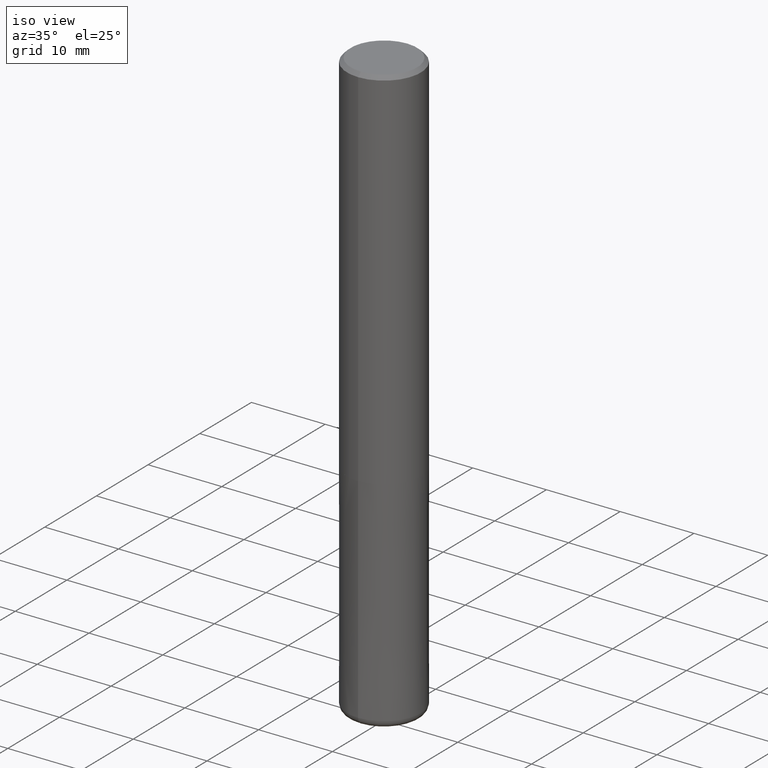
[diagram: clean part render]
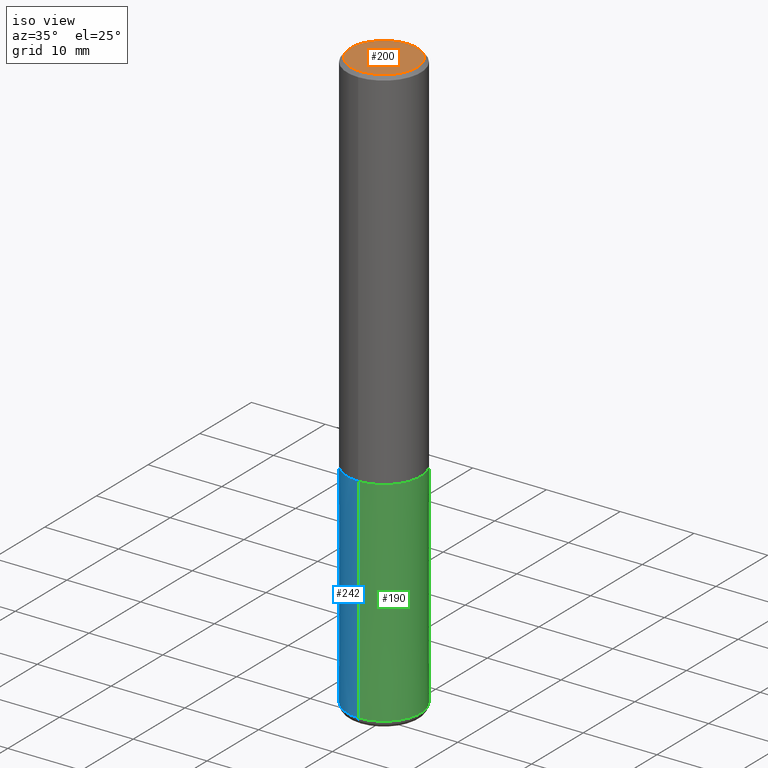
[diagram: same view with three faces highlighted in distinct colors, each labeled with its STEP entity id]
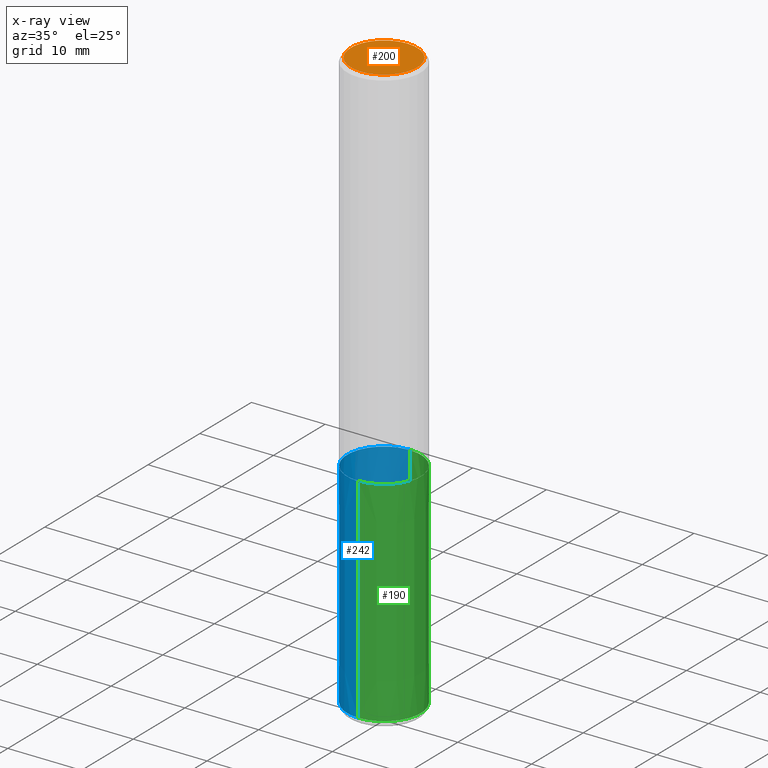
[diagram: x-ray of the same camera — body ghosted, the three highlighted faces saturated]
A machine part, iso view with three faces highlighted in distinct colors.
The next image is the same camera in x-ray (body ghosted, the three faces saturated) — at least one of them is partly hidden behind the body in this view.
Their STEP definitions:

[orange] entity #200 — the highlighted planar face has unit normal (-0, 0, 1).
#152=VERTEX_POINT('',#320);
#160=EDGE_CURVE('',#168,#152,#329,.T.);
#168=VERTEX_POINT('',#338);
#172=EDGE_CURVE('',#152,#168,#342,.T.);
#200=ADVANCED_FACE('',(#375),#376,.T.);
#320=CARTESIAN_POINT('',(0.0,4.5,0.0));
#329=CIRCLE('',#516,4.5);
#338=CARTESIAN_POINT('',(5.5107285922007E-016,-4.5,0.0));
#342=CIRCLE('',#534,4.5);
#375=FACE_OUTER_BOUND('',#572,.T.);
#376=PLANE('',#573);
#516=AXIS2_PLACEMENT_3D('',#721,#722,#723);
#534=AXIS2_PLACEMENT_3D('',#739,#740,#741);
#572=EDGE_LOOP('',(#788,#789));
#573=AXIS2_PLACEMENT_3D('',#790,#791,#792);
#721=CARTESIAN_POINT('',(0.0,0.0,0.0));
#722=DIRECTION('',(0.0,0.0,-1.0));
#723=DIRECTION('',(0.0,1.0,0.0));
#739=CARTESIAN_POINT('',(0.0,0.0,0.0));
#740=DIRECTION('',(0.0,0.0,-1.0));
#741=DIRECTION('',(0.0,1.0,0.0));
#788=ORIENTED_EDGE('',*,*,#172,.F.);
#789=ORIENTED_EDGE('',*,*,#160,.F.);
#790=CARTESIAN_POINT('',(0.0,2.25,0.0));
#791=DIRECTION('',(-0.0,0.0,1.0));
#792=DIRECTION('',(0.0,-1.0,0.0));

[blue] entity #242 — the highlighted conical surface has half-angle 0 deg.
#106=VERTEX_POINT('',#267);
#132=VERTEX_POINT('',#296);
#134=EDGE_CURVE('',#132,#150,#298,.T.);
#150=VERTEX_POINT('',#318);
#164=EDGE_CURVE('',#132,#106,#334,.T.);
#166=EDGE_CURVE('',#106,#184,#336,.T.);
#184=VERTEX_POINT('',#356);
#188=EDGE_CURVE('',#184,#150,#361,.T.);
#242=ADVANCED_FACE('',(#422),#423,.T.);
#267=CARTESIAN_POINT('',(6.1229093084765E-016,-4.9999,-50.0));
#296=CARTESIAN_POINT('',(6.12303176911188E-016,-5.0,-79.0));
#298=CIRCLE('',#481,5.0);
#318=CARTESIAN_POINT('',(0.0,5.0,-79.0));
#334=LINE('',#522,#523);
#336=CIRCLE('',#526,4.9999);
#356=CARTESIAN_POINT('',(0.0,4.9999,-50.0));
#361=LINE('',#556,#557);
#422=FACE_OUTER_BOUND('',#635,.T.);
#423=CONICAL_SURFACE('',#636,4.99995,3.44827586204726E-006);
#481=AXIS2_PLACEMENT_3D('',#677,#678,#679);
#522=CARTESIAN_POINT('',(6.12297053879419E-016,-4.99995,-64.5));
#523=VECTOR('',#732,1.0);
#526=AXIS2_PLACEMENT_3D('',#733,#734,#735);
#556=CARTESIAN_POINT('',(-6.12297053879419E-016,4.99995,-64.5));
#557=VECTOR('',#767,1.0);
#635=EDGE_LOOP('',(#843,#844,#845,#846));
#636=AXIS2_PLACEMENT_3D('',#847,#848,#849);
#677=CARTESIAN_POINT('',(0.0,0.0,-79.0));
#678=DIRECTION('',(0.0,0.0,-1.0));
#679=DIRECTION('',(0.0,1.0,0.0));
#732=DIRECTION('',(-4.22278053038704E-022,3.44827586204043E-006,0.999999999994055));
#733=CARTESIAN_POINT('',(0.0,0.0,-50.0));
#734=DIRECTION('',(0.0,0.0,-1.0));
#735=DIRECTION('',(0.0,1.0,0.0));
#767=DIRECTION('',(-4.22278053038704E-022,3.44827586204043E-006,-0.999999999994055));
#843=ORIENTED_EDGE('',*,*,#188,.T.);
#844=ORIENTED_EDGE('',*,*,#134,.F.);
#845=ORIENTED_EDGE('',*,*,#164,.T.);
#846=ORIENTED_EDGE('',*,*,#166,.T.);
#847=CARTESIAN_POINT('',(0.0,0.0,-64.5));
#848=DIRECTION('',(0.0,-0.0,-1.0));
#849=DIRECTION('',(0.0,1.0,0.0));

[green] entity #190 — the highlighted conical surface has half-angle 0 deg.
#106=VERTEX_POINT('',#267);
#132=VERTEX_POINT('',#296);
#150=VERTEX_POINT('',#318);
#164=EDGE_CURVE('',#132,#106,#334,.T.);
#184=VERTEX_POINT('',#356);
#188=EDGE_CURVE('',#184,#150,#361,.T.);
#190=ADVANCED_FACE('',(#363),#364,.T.);
#214=EDGE_CURVE('',#150,#132,#392,.T.);
#234=EDGE_CURVE('',#184,#106,#413,.T.);
#267=CARTESIAN_POINT('',(6.1229093084765E-016,-4.9999,-50.0));
#296=CARTESIAN_POINT('',(6.12303176911188E-016,-5.0,-79.0));
#318=CARTESIAN_POINT('',(0.0,5.0,-79.0));
#334=LINE('',#522,#523);
#356=CARTESIAN_POINT('',(0.0,4.9999,-50.0));
#361=LINE('',#556,#557);
#363=FACE_OUTER_BOUND('',#559,.T.);
#364=CONICAL_SURFACE('',#560,4.99995,3.44827586204726E-006);
#392=CIRCLE('',#595,5.0);
#413=CIRCLE('',#623,4.9999);
#522=CARTESIAN_POINT('',(6.12297053879419E-016,-4.99995,-64.5));
#523=VECTOR('',#732,1.0);
#556=CARTESIAN_POINT('',(-6.12297053879419E-016,4.99995,-64.5));
#557=VECTOR('',#767,1.0);
#559=EDGE_LOOP('',(#769,#770,#771,#772));
#560=AXIS2_PLACEMENT_3D('',#773,#774,#775);
#595=AXIS2_PLACEMENT_3D('',#811,#812,#813);
#623=AXIS2_PLACEMENT_3D('',#827,#828,#829);
#732=DIRECTION('',(-4.22278053038704E-022,3.44827586204043E-006,0.999999999994055));
#767=DIRECTION('',(-4.22278053038704E-022,3.44827586204043E-006,-0.999999999994055));
#769=ORIENTED_EDGE('',*,*,#188,.F.);
#770=ORIENTED_EDGE('',*,*,#234,.T.);
#771=ORIENTED_EDGE('',*,*,#164,.F.);
#772=ORIENTED_EDGE('',*,*,#214,.F.);
#773=CARTESIAN_POINT('',(0.0,0.0,-64.5));
#774=DIRECTION('',(0.0,-0.0,-1.0));
#775=DIRECTION('',(0.0,1.0,0.0));
#811=CARTESIAN_POINT('',(0.0,0.0,-79.0));
#812=DIRECTION('',(0.0,0.0,-1.0));
#813=DIRECTION('',(0.0,1.0,0.0));
#827=CARTESIAN_POINT('',(0.0,0.0,-50.0));
#828=DIRECTION('',(0.0,0.0,-1.0));
#829=DIRECTION('',(0.0,1.0,0.0));